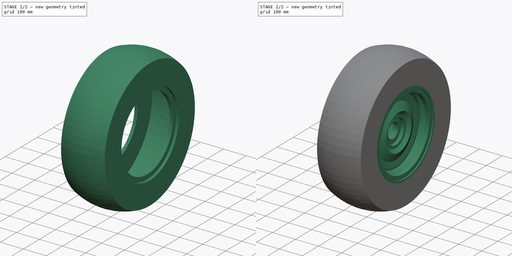
[diagram: build sequence overview — one tinted view per stage of 2, left to right]
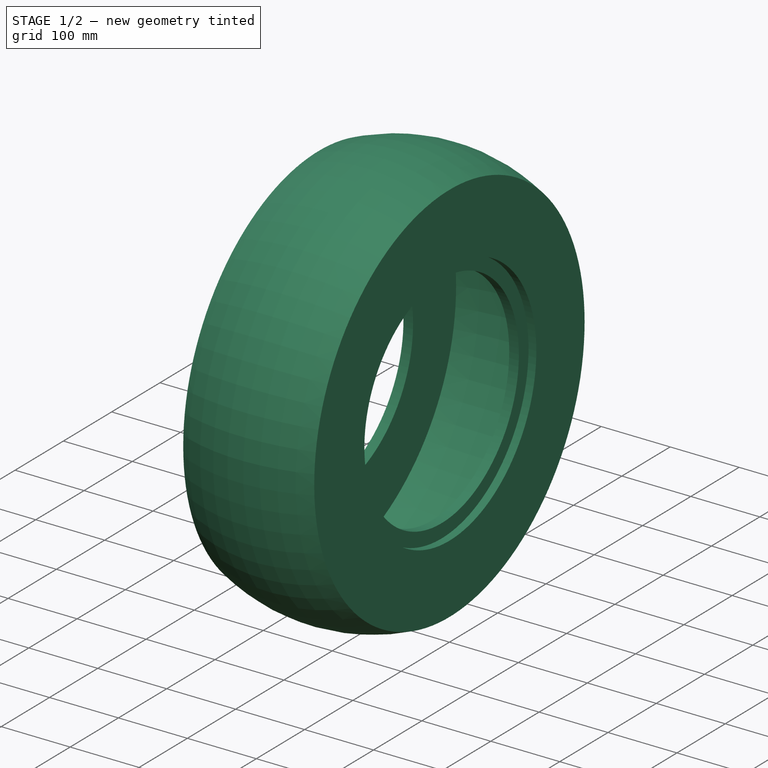
[diagram: stage 1 of 2 — iso view after this stage's code; geometry added in this stage tinted green]
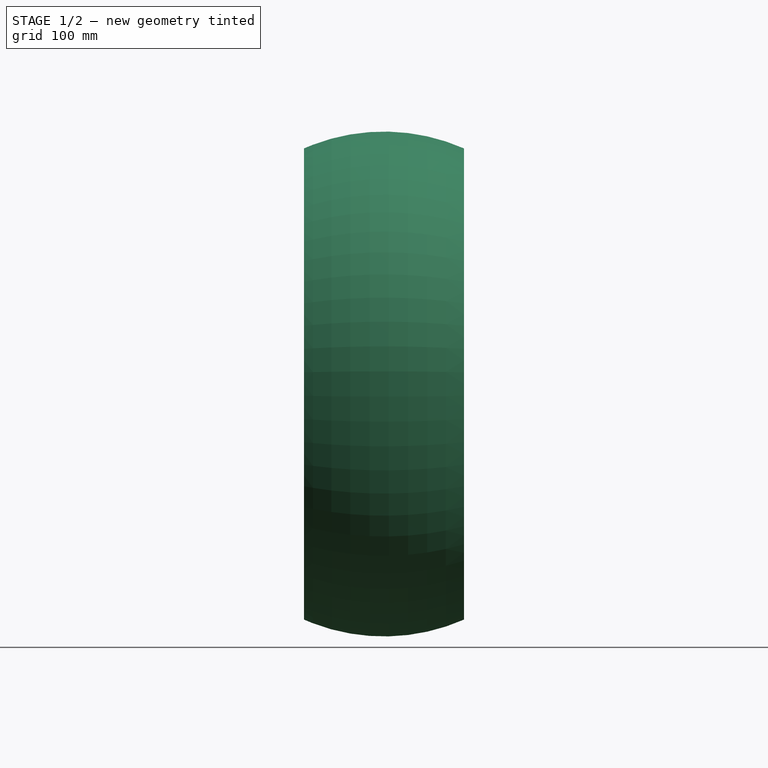
[diagram: stage 1 of 2 — front view after this stage's code; geometry added in this stage tinted green]
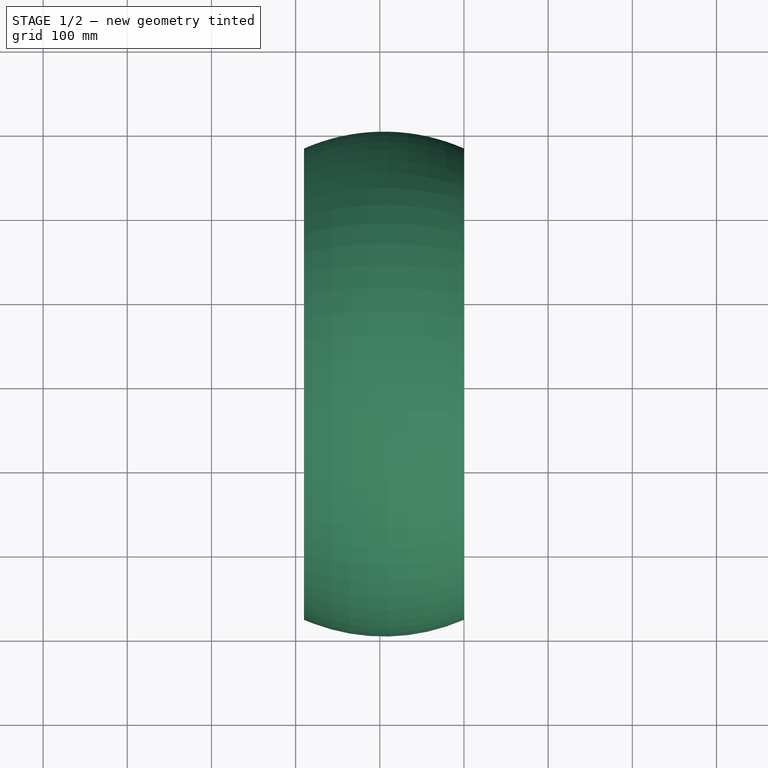
[diagram: stage 1 of 2 — top view after this stage's code; geometry added in this stage tinted green]
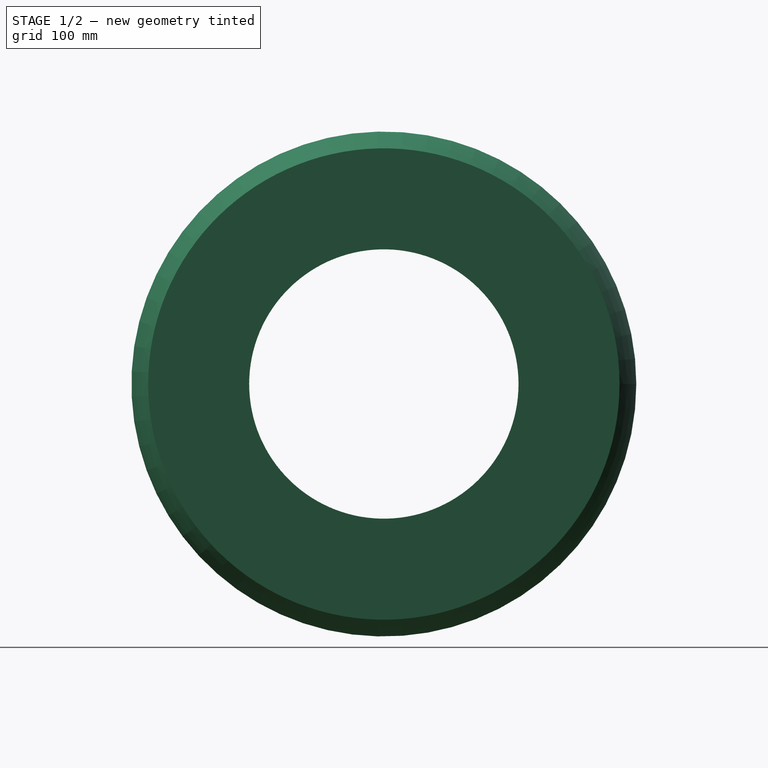
[diagram: stage 1 of 2 — right view after this stage's code; geometry added in this stage tinted green]
FCSTD DOCUMENT  (FreeCAD 0.19R18990 (Git))
Label: Wheel Tire
License: All rights reserved
LicenseURL: http://en.wikipedia.org/wiki/All_rights_reserved
objects: Sketcher::SketchObject×2, PartDesign::Revolution×2, PartDesign::Body×2
note: 8 computed .brp shape members not serialized (recipe doc carries the construction recipe); baked Part::Feature solids carry a one-line shape summary decoded from their .brp

FEATURE [PartDesign::Body] Body  label="Wheel"
  Group = -> [Sketch002,Revolution001]
  Origin = -> Origin
  Tip = -> Revolution001
FEATURE [Sketcher::SketchObject] Sketch003  label="Sketch004"
  sketch-geometry (30):
    g0: LineSegment StartX=-190 StartY=180 StartZ=0 EndX=-178.7 EndY=180 EndZ=0
    g1: LineSegment StartX=-178.7 StartY=180 StartZ=0 EndX=-178.7 EndY=160 EndZ=0
    g2: LineSegment StartX=-178.7 StartY=160 StartZ=0 EndX=-164.7 EndY=160 EndZ=0
    g3: LineSegment StartX=-25.3 StartY=160 StartZ=0 EndX=-11.3 EndY=160 EndZ=0
    g4: LineSegment StartX=-11.3 StartY=160 StartZ=0 EndX=-11.3 EndY=180 EndZ=0
    g5: LineSegment StartX=-11.3 StartY=180 StartZ=0 EndX=-8.53e-14 EndY=180 EndZ=0
    g6: LineSegment StartX=-8.53e-14 StartY=180 StartZ=0 EndX=-8.53e-14 EndY=280 EndZ=0
    g7: LineSegment StartX=-190 StartY=180 StartZ=0 EndX=-190 EndY=280 EndZ=0
    g8: LineSegment [constr] StartX=-8.53e-14 StartY=280 StartZ=0 EndX=-190 EndY=280 EndZ=0
    g9: ArcOfCircle CenterX=-95 CenterY=64.4884 CenterZ=0 NormalX=0 NormalY=0 NormalZ=1 AngleXU=0 Radius=235.521 StartAngle=1.15561 EndAngle=1.98598
    g10: LineSegment StartX=-164.7 StartY=160 StartZ=0 EndX=-164.7 EndY=166 EndZ=0
    g11: LineSegment StartX=-164.7 StartY=166 StartZ=0 EndX=-172.7 EndY=166 EndZ=0
    g12: LineSegment StartX=-172.7 StartY=166 StartZ=0 EndX=-172.7 EndY=186 EndZ=0
    g13: LineSegment StartX=-172.7 StartY=186 StartZ=0 EndX=-183 EndY=186 EndZ=0
    g14: LineSegment StartX=-183 StartY=186 StartZ=0 EndX=-183 EndY=275.196 EndZ=0
    g15: LineSegment [constr] StartX=-183 StartY=275.196 StartZ=0 EndX=-7 EndY=275.196 EndZ=0
    g16: LineSegment StartX=-7 StartY=275.196 StartZ=0 EndX=-7 EndY=186 EndZ=0
    g17: LineSegment StartX=-7 StartY=186 StartZ=0 EndX=-17.3 EndY=186 EndZ=0
    g18: LineSegment StartX=-17.3 StartY=186 StartZ=0 EndX=-17.3 EndY=166 EndZ=0
    g19: LineSegment StartX=-17.3 StartY=166 StartZ=0 EndX=-25.3 EndY=166 EndZ=0
    g20: LineSegment StartX=-25.3 StartY=160 StartZ=0 EndX=-25.3 EndY=166 EndZ=0
    g21: LineSegment [constr] StartX=-25.3 StartY=160 StartZ=0 EndX=-164.7 EndY=160 EndZ=0
    g22: LineSegment [constr] StartX=-178.7 StartY=180 StartZ=0 EndX=-11.3 EndY=180 EndZ=0
    g23: LineSegment [constr] StartX=-17.3 StartY=186 StartZ=0 EndX=-172.7 EndY=186 EndZ=0
    g24: ArcOfCircle CenterX=-95 CenterY=-20.6318 CenterZ=0 NormalX=0 NormalY=0 NormalZ=1 AngleXU=0 Radius=308.639 StartAngle=1.28166 EndAngle=1.85993
    g25: LineSegment [constr] StartX=-92.8888 StartY=300 StartZ=0 EndX=-92.9678 EndY=288 EndZ=0
    g26: LineSegment [constr] StartX=-178.7 StartY=180 StartZ=0 EndX=-172.7 EndY=186 EndZ=0
    g27: LineSegment [constr] StartX=-11.3 StartY=180 StartZ=0 EndX=-17.3 EndY=186 EndZ=0
    g28: LineSegment [constr] StartX=-7 StartY=275.196 StartZ=0 EndX=-8.44e-14 EndY=280 EndZ=0
    g29: LineSegment [constr] StartX=-190 StartY=280 StartZ=0 EndX=-183 EndY=275.196 EndZ=0
  constraints (82):
    c: Coincident(g0,g1)
    c: Coincident(g1,g2)
    c: Coincident(g3,g4)
    c: Coincident(g4,g5)
    c: DistanceX(g5,g5) = 11.3
    c: DistanceX(g0,g5) = 190
    c: Vertical(g4)
    c: Vertical(g1)
    c: Horizontal(g2)
    c: Horizontal(g0)
    c: Horizontal(g5)
    c: Horizontal(g3)
    c: PointOnObject(g5,g-2)
    c: DistanceY(g-1,g5) = 180  'Radius of Wheel Rim'
    c: DistanceY(g4,g4) = 20
    c: Equal(g5,g0)
    c: DistanceX(g3,g3) = 14
    c: Coincident(g6,g5)
    c: Vertical(g6)
    c: Coincident(g7,g0)
    c: Vertical(g7)
    c: Coincident(g8,g6)
    c: Coincident(g8,g7)
    c: Horizontal(g8)
    c: Coincident(g9,g7)
    c: Coincident(g9,g6)
    c: Vertical(g10)
    c: Coincident(g10,g11)
    c: Horizontal(g11)
    c: Coincident(g11,g12)
    c: Vertical(g12)
    c: Coincident(g12,g13)
    c: Horizontal(g13)
    c: Coincident(g13,g14)
    c: Vertical(g14)
    c: Coincident(g14,g15)
    c: Horizontal(g15)
    c: Coincident(g15,g16)
    c: Vertical(g16)
    c: Coincident(g16,g17)
    c: Horizontal(g17)
    c: Coincident(g17,g18)
    c: Vertical(g18)
    c: Coincident(g18,g19)
    c: Coincident(g2,g10)
    c: Equal(g2,g3)
    c: Horizontal(g19)
    c: Coincident(g20,g3)
    c: Vertical(g20)
    c: Coincident(g19,g20)
    c: Distance(g20) = 6
    c: Equal(g20,g10)
    c: Coincident(g21,g3)
    c: Coincident(g21,g2)
    c: Horizontal(g21)
    c: DistanceX(g18,g4) = 6
    c: Equal(g11,g19)
    c: DistanceY(g4,g16) = 6
    c: Coincident(g22,g0)
    c: Coincident(g22,g4)
    c: Horizontal(g22)
    c: Coincident(g23,g17)
    c: Coincident(g23,g12)
    c: Horizontal(g23)
    c: DistanceX(g16,g5) = 7
    c: DistanceX(g0,g13) = 7
    c: Coincident(g24,g14)
    c: Coincident(g24,g16)
    c: PointOnObject(g25,g9)
    c: PointOnObject(g25,g24)
    c: Coincident(g26,g0)
    c: Coincident(g26,g12)
    c: Coincident(g27,g4)
    c: Coincident(g27,g17)
    c: Coincident(g28,g16)
    c: Coincident(g28,g6)
    c: Distance(g28) = 8.49
    c: Coincident(g29,g7)
    c: Coincident(g29,g14)
    c: Perpendicular(g24,g25)
    c: Distance(g25) = 12
    c: DistanceY(g0,g25) = 120
FEATURE [PartDesign::Revolution] Revolution
  Angle = 360
  Axis = (1,0,0)
  Base = (0,0,0)
  Profile = -> Sketch003
  ReferenceAxis = -> X_Axis001
FEATURE [PartDesign::Body] Body001  label="Tire"
  Group = -> [Sketch003,Revolution]
  Origin = -> Origin001
  Tip = -> Revolution
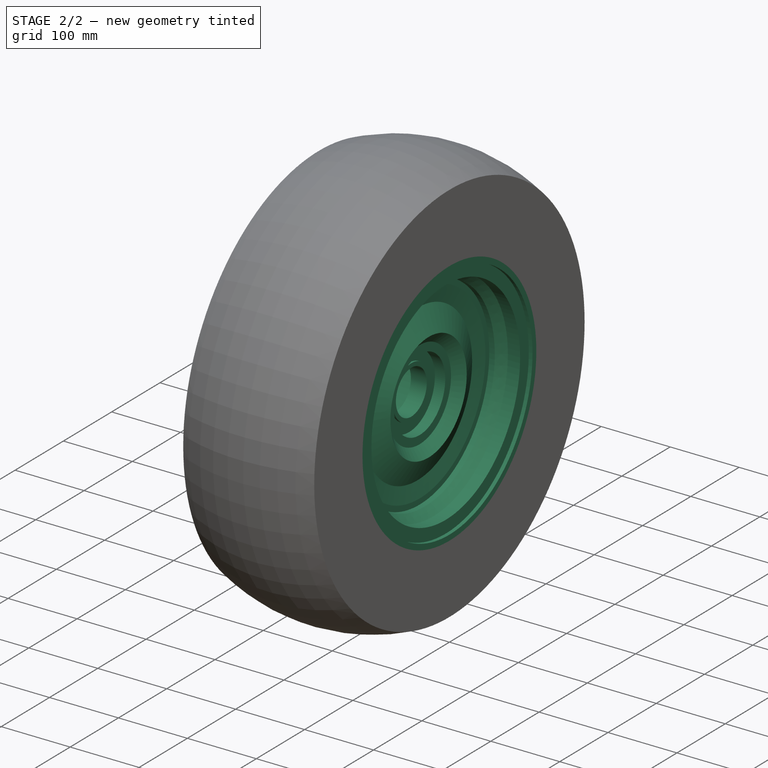
[diagram: stage 2 of 2 — iso view after this stage's code; geometry added in this stage tinted green]
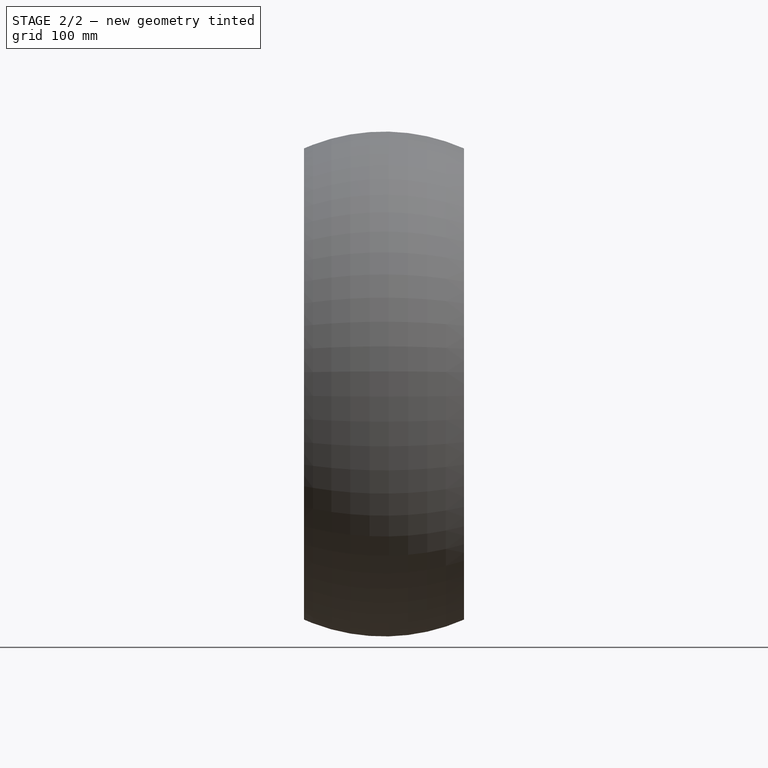
[diagram: stage 2 of 2 — front view after this stage's code; geometry added in this stage tinted green]
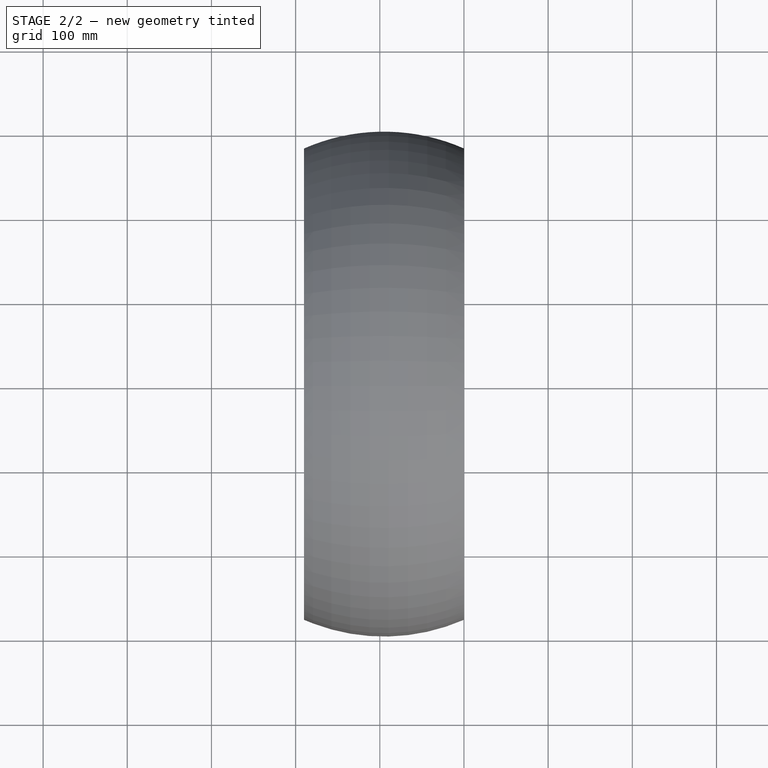
[diagram: stage 2 of 2 — top view after this stage's code; geometry added in this stage tinted green]
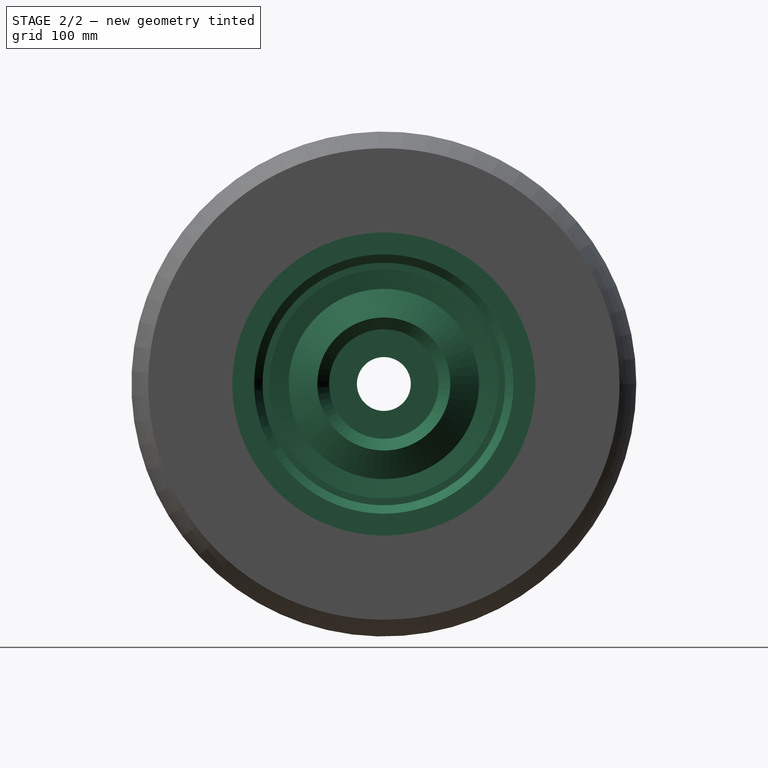
[diagram: stage 2 of 2 — right view after this stage's code; geometry added in this stage tinted green]
FEATURE [Sketcher::SketchObject] Sketch002  label="Sketch003"
  sketch-geometry (40):
    g0: LineSegment StartX=-190 StartY=180 StartZ=0 EndX=-178.7 EndY=180 EndZ=0
    g1: LineSegment StartX=-178.7 StartY=180 StartZ=0 EndX=-178.7 EndY=160 EndZ=0
    g2: LineSegment StartX=-178.7 StartY=160 StartZ=0 EndX=-105.135 EndY=160 EndZ=0
    g3: LineSegment StartX=-105.135 StartY=160 StartZ=0 EndX=-93.2175 EndY=150 EndZ=0
    g4: LineSegment StartX=-93.2175 StartY=150 StartZ=0 EndX=-37.2175 EndY=150 EndZ=0
    g5: LineSegment StartX=-37.2175 StartY=150 StartZ=0 EndX=-25.3 EndY=160 EndZ=0
    g6: LineSegment StartX=-25.3 StartY=160 StartZ=0 EndX=-11.3 EndY=160 EndZ=0
    g7: LineSegment StartX=-11.3 StartY=160 StartZ=0 EndX=-11.3 EndY=180 EndZ=0
    g8: LineSegment StartX=-11.3 StartY=180 StartZ=0 EndX=0 EndY=180 EndZ=0
    g9: LineSegment [constr] StartX=-105.135 StartY=160 StartZ=0 EndX=-25.3 EndY=160 EndZ=0
    g10: LineSegment StartX=-190 StartY=180 StartZ=0 EndX=-190 EndY=172.022 EndZ=0
    g11: LineSegment StartX=-190 StartY=172.022 StartZ=0 EndX=-184.7 EndY=172.022 EndZ=0
    g12: LineSegment StartX=-184.7 StartY=172.022 StartZ=0 EndX=-184.7 EndY=154 EndZ=0
    g13: LineSegment StartX=-184.7 StartY=154 StartZ=0 EndX=-107.319 EndY=154 EndZ=0
    g14: LineSegment StartX=-107.319 StartY=154 StartZ=0 EndX=-95.4014 EndY=144 EndZ=0
    g15: LineSegment StartX=-95.4014 StartY=144 StartZ=0 EndX=-58.2237 EndY=144 EndZ=0
    g16: LineSegment StartX=0 StartY=180 StartZ=0 EndX=-3.4737e-06 EndY=172.022 EndZ=0
    g17: LineSegment StartX=-3.4737e-06 StartY=172.022 StartZ=0 EndX=-5.3 EndY=172.022 EndZ=0
    g18: LineSegment StartX=-5.3 StartY=172.022 StartZ=0 EndX=-5.3 EndY=154 EndZ=0
    g19: LineSegment StartX=-5.3 StartY=154 StartZ=0 EndX=-23.1162 EndY=154 EndZ=0
    g20: LineSegment StartX=-35.0337 StartY=144 StartZ=0 EndX=-23.1162 EndY=154 EndZ=0
    g21: LineSegment StartX=-58.2237 StartY=72 StartZ=0 EndX=-58.2237 EndY=144 EndZ=0
    g22: LineSegment StartX=-43.0337 StartY=136 StartZ=0 EndX=-43.0337 EndY=144 EndZ=0
    g23: LineSegment StartX=-43.0337 StartY=144 StartZ=0 EndX=-35.0337 EndY=144 EndZ=0
    g24: LineSegment StartX=-46.2237 StartY=113 StartZ=0 EndX=-43.0337 EndY=136 EndZ=0
    g25: LineSegment StartX=-30.2237 StartY=79 StartZ=0 EndX=-46.2237 EndY=113 EndZ=0
    g26: LineSegment StartX=-58.2237 StartY=72 StartZ=0 EndX=-78.2237 EndY=72 EndZ=0
    g27: LineSegment StartX=-78.2237 StartY=72 StartZ=0 EndX=-78.2237 EndY=32 EndZ=0
    g28: LineSegment StartX=-78.2237 StartY=32 StartZ=0 EndX=-55.2237 EndY=32 EndZ=0
    g29: LineSegment StartX=-55.2237 StartY=32 StartZ=0 EndX=-55.2237 EndY=38 EndZ=0
    g30: LineSegment StartX=-55.2237 StartY=38 StartZ=0 EndX=-58.2237 EndY=38 EndZ=0
    g31: LineSegment StartX=-58.2237 StartY=38 StartZ=0 EndX=-58.2237 EndY=53 EndZ=0
    g32: LineSegment StartX=-58.2237 StartY=53 StartZ=0 EndX=-43.1852 EndY=53 EndZ=0
    g33: LineSegment StartX=-43.1852 StartY=53 StartZ=0 EndX=-43.1852 EndY=65 EndZ=0
    g34: LineSegment StartX=-43.1852 StartY=65 StartZ=0 EndX=-30.2237 EndY=79 EndZ=0
    g35: LineSegment [constr] StartX=-58.2237 StartY=144 StartZ=0 EndX=-43.0337 EndY=144 EndZ=0
    g36: LineSegment [constr] StartX=-58.2237 StartY=53 StartZ=0 EndX=-58.2237 EndY=72 EndZ=0
    g37: LineSegment [constr] StartX=-100.509 StartY=156.119 StartZ=0 EndX=-104.366 EndY=151.522 EndZ=0
    g38: LineSegment [constr] StartX=-32.6459 StartY=153.836 StartZ=0 EndX=-28.7892 EndY=149.24 EndZ=0
    g39: LineSegment [constr] StartX=-11.3 StartY=180 StartZ=0 EndX=-178.7 EndY=180 EndZ=0
  constraints (107):
    c: Coincident(g0,g1)
    c: Coincident(g1,g2)
    c: Coincident(g2,g3)
    c: Coincident(g3,g4)
    c: Coincident(g4,g5)
    c: Coincident(g5,g6)
    c: Coincident(g6,g7)
    c: Coincident(g7,g8)
    c: DistanceX(g8,g8) = 11.3
    c: DistanceX(g0,g8) = 190
    c: Vertical(g7)
    c: Vertical(g1)
    c: DistanceX(g4,g4) = 56
    c: Angle(g5,g4) = 2.44346
    c: Angle(g4,g3) = 2.44346
    c: Horizontal(g4)
    c: Horizontal(g2)
    c: Horizontal(g0)
    c: Horizontal(g8)
    c: Horizontal(g6)
    c: Coincident(g9,g2)
    c: Coincident(g9,g5)
    c: Horizontal(g9)
    c: PointOnObject(g8,g-2)
    c: DistanceY(g3,g0) = 30
    c: DistanceY(g-1,g8) = 180  'Radius of Wheel Rim'
    c: DistanceY(g7,g7) = 20
    c: Equal(g8,g0)
    c: Coincident(g0,g10)
    c: Coincident(g10,g11)
    c: Coincident(g11,g12)
    c: Coincident(g12,g13)
    c: Coincident(g13,g14)
    c: Coincident(g14,g15)
    c: Coincident(g8,g16)
    c: Coincident(g16,g17)
    c: Coincident(g17,g18)
    c: Coincident(g18,g19)
    c: Coincident(g20,g23)
    c: Coincident(g20,g19)
    c: Tangent(g15,g23)
    c: Coincident(g24,g22)
    c: Coincident(g25,g24)
    c: Coincident(g21,g26)
    c: Coincident(g26,g27)
    c: Coincident(g27,g28)
    c: Coincident(g28,g29)
    c: Coincident(g29,g30)
    c: Coincident(g30,g31)
    c: Coincident(g31,g32)
    c: Coincident(g32,g33)
    c: Coincident(g33,g34)
    c: Coincident(g34,g25)
    c: Coincident(g22,g23)
    c: Coincident(g21,g15)
    c: Equal(g10,g16)
    c: Coincident(g35,g15)
    c: Coincident(g35,g22)
    c: Horizontal(g35)
    c: Equal(g3,g14)
    c: Equal(g5,g20)
    c: DistanceX(g35,g35) = 15.19
    c: DistanceY(g15,g3) = 6
    c: Vertical(g22)
    c: Vertical(g21)
    c: DistanceY(g22,g22) = 8
    c: DistanceY(g33,g33) = 12
    c: DistanceX(g15,g24) = 12
    c: DistanceX(g21,g25) = 28
    c: DistanceX(g26,g26) = 20
    c: Vertical(g27)
    c: DistanceY(g27,g27) = 40
    c: Horizontal(g26)
    c: Horizontal(g28)
    c: DistanceY(g31,g31) = 15
    c: DistanceY(g29,g29) = 6
    c: Horizontal(g30)
    c: Horizontal(g32)
    c: Vertical(g33)
    c: Vertical(g31)
    c: DistanceX(g30,g30) = 3
    c: Vertical(g29)
    c: Coincident(g36,g31)
    c: Coincident(g36,g21)
    c: Vertical(g36)
    c: DistanceX(g23,g23) = 8
    c: DistanceY(g32,g25) = 26
    c: DistanceY(g-1,g28) = 32
    c: DistanceY(g32,g24) = 60
    c: Horizontal(g13)
    c: Horizontal(g19)
    c: Horizontal(g17)
    c: Horizontal(g11)
    c: DistanceY(g12,g1) = 6
    c: DistanceY(g18,g6) = 6
    c: DistanceX(g6,g6) = 14
    c: PointOnObject(g37,g3)
    c: PointOnObject(g37,g14)
    c: PointOnObject(g38,g5)
    c: PointOnObject(g38,g20)
    c: Perpendicular(g38,g20)
    c: Perpendicular(g37,g14)
    c: Distance(g37) = 6
    c: Equal(g38,g37)
    c: Coincident(g39,g7)
    c: Coincident(g39,g0)
    c: Horizontal(g39)
FEATURE [PartDesign::Revolution] Revolution001
  Angle = 360
  Axis = (1,0,0)
  Base = (0,0,0)
  Profile = -> Sketch002
  ReferenceAxis = -> X_Axis
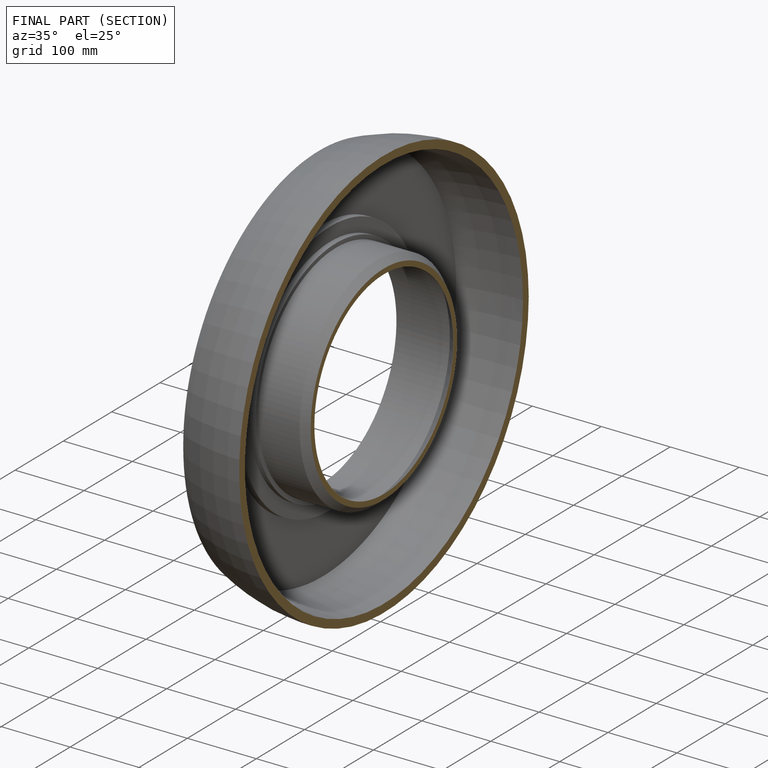
[diagram: finished part — half-section view (interior)]
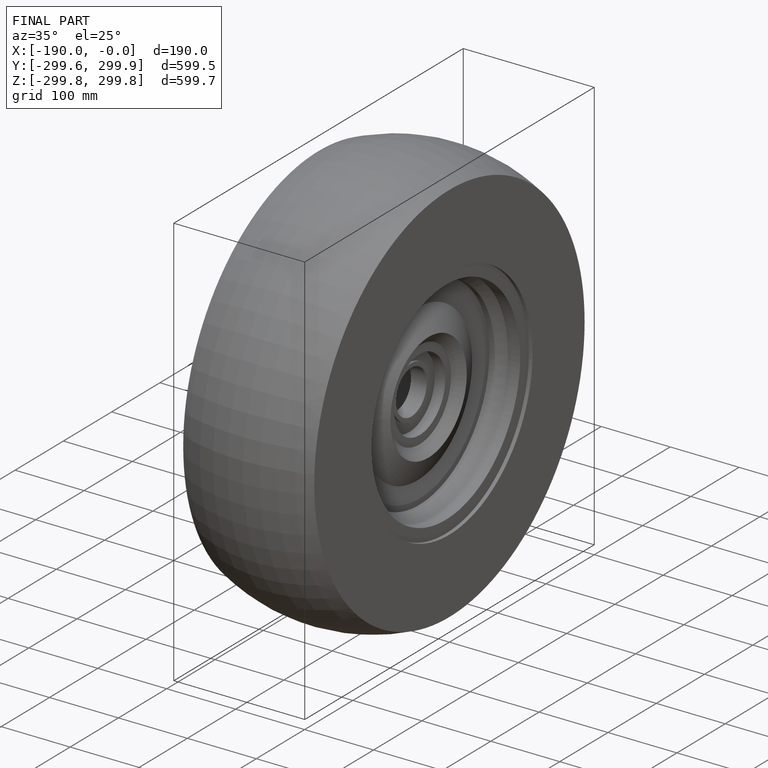
[diagram: finished part — iso view with bounding-box wireframe]
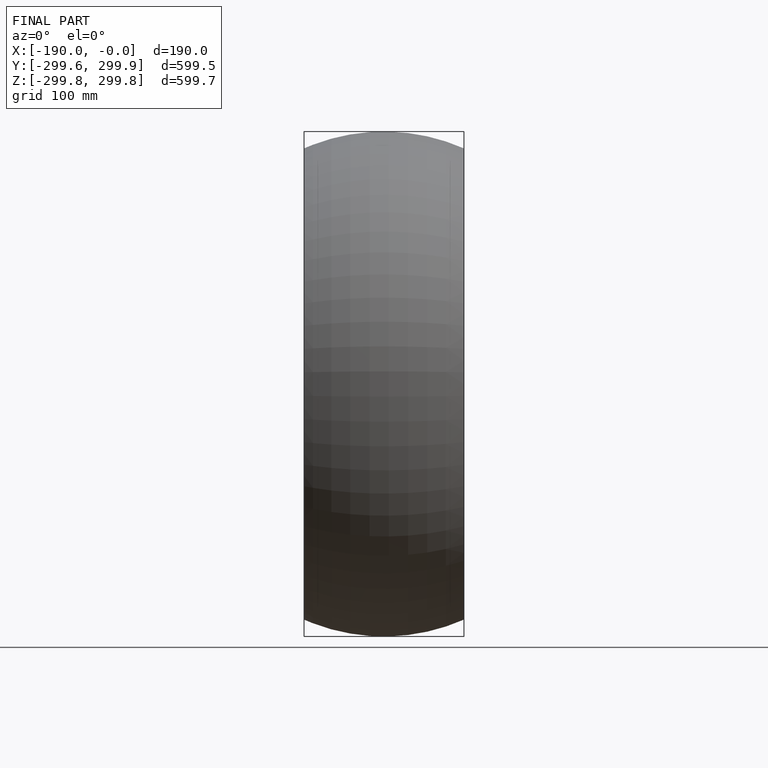
[diagram: finished part — front view with bounding-box wireframe]
